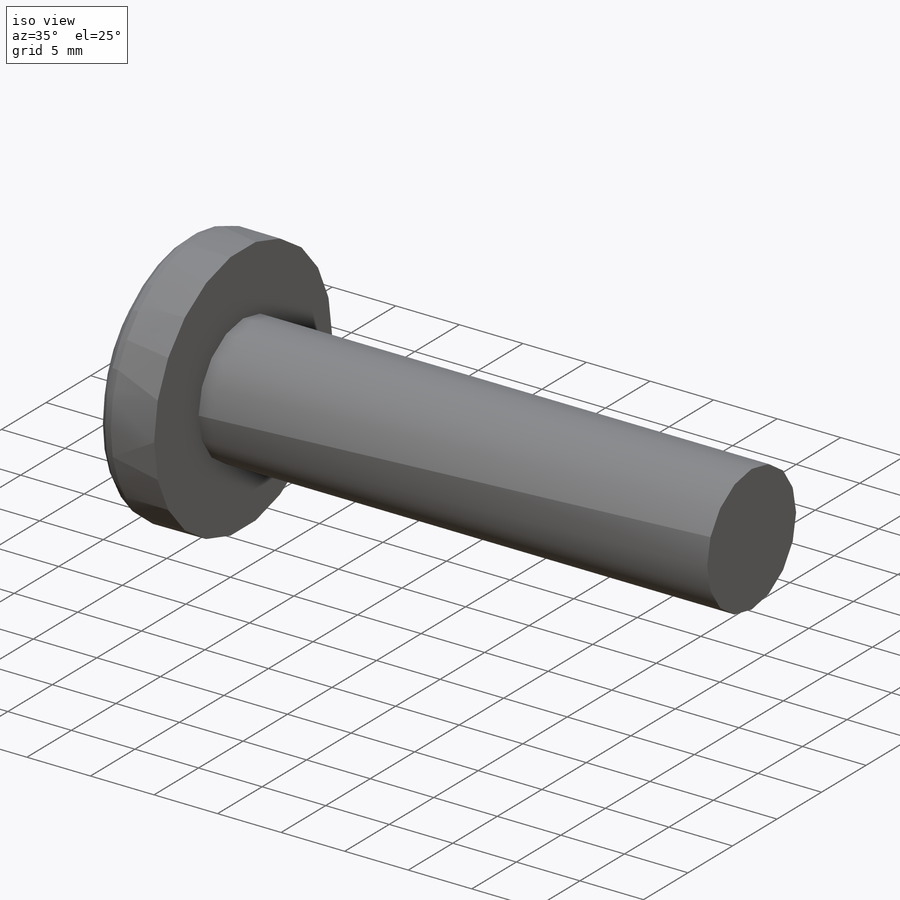
[diagram: iso view]
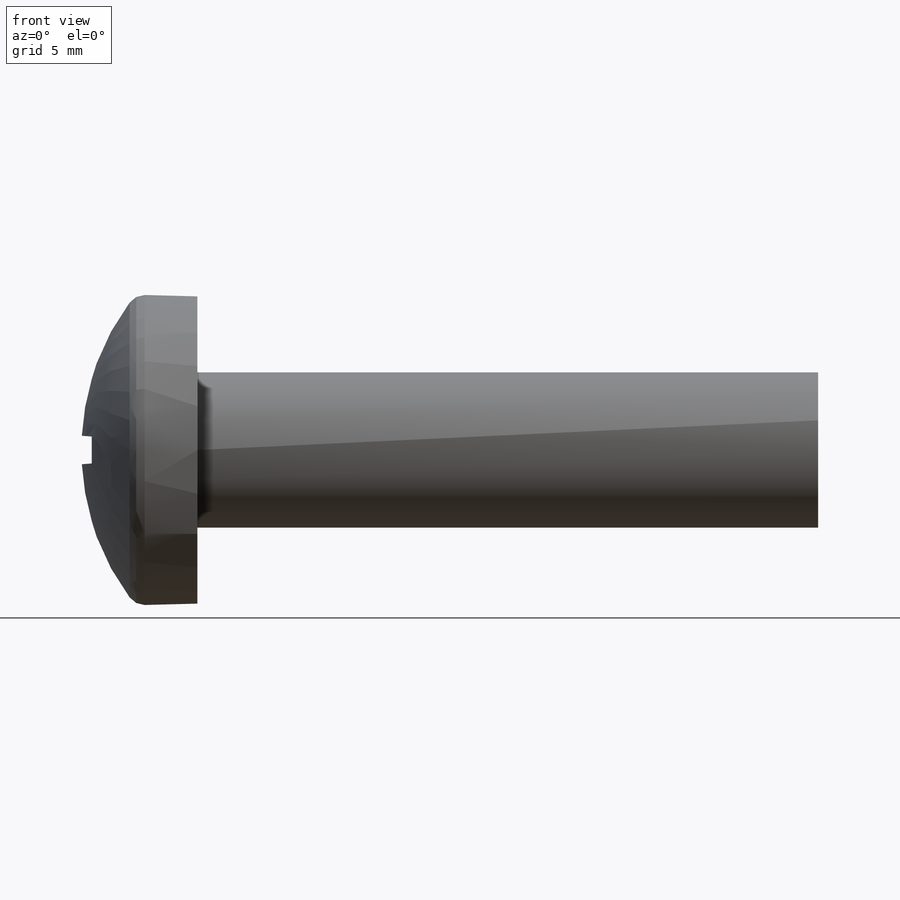
[diagram: front view]
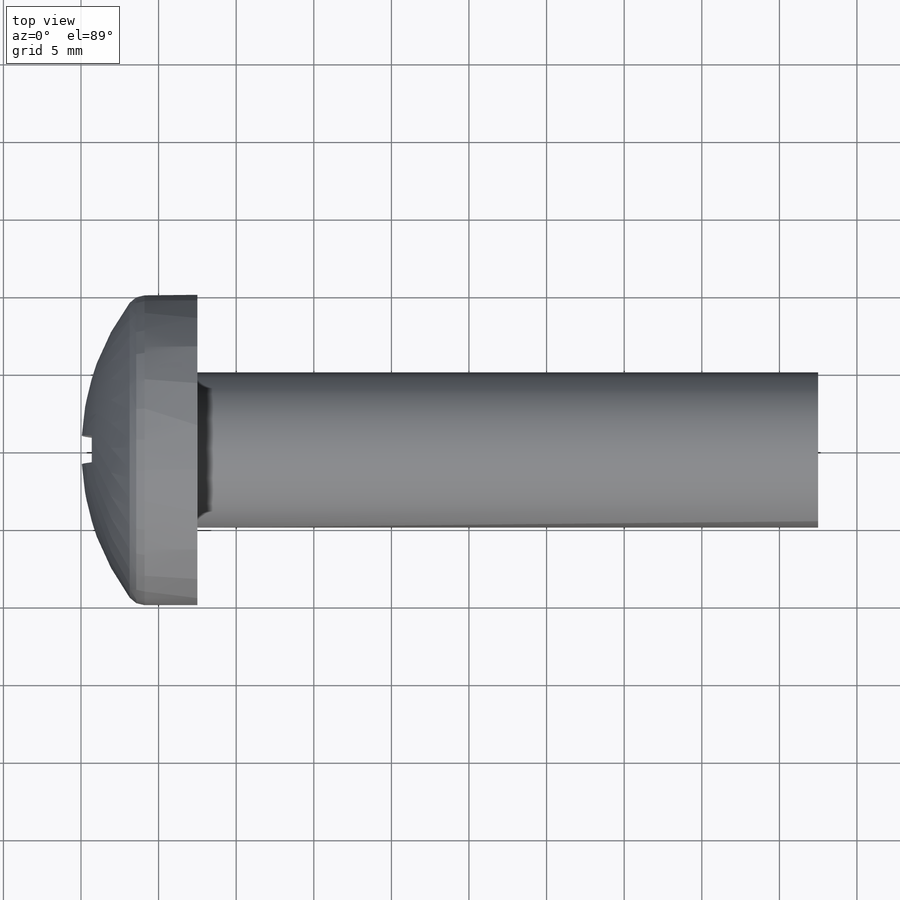
[diagram: top view]
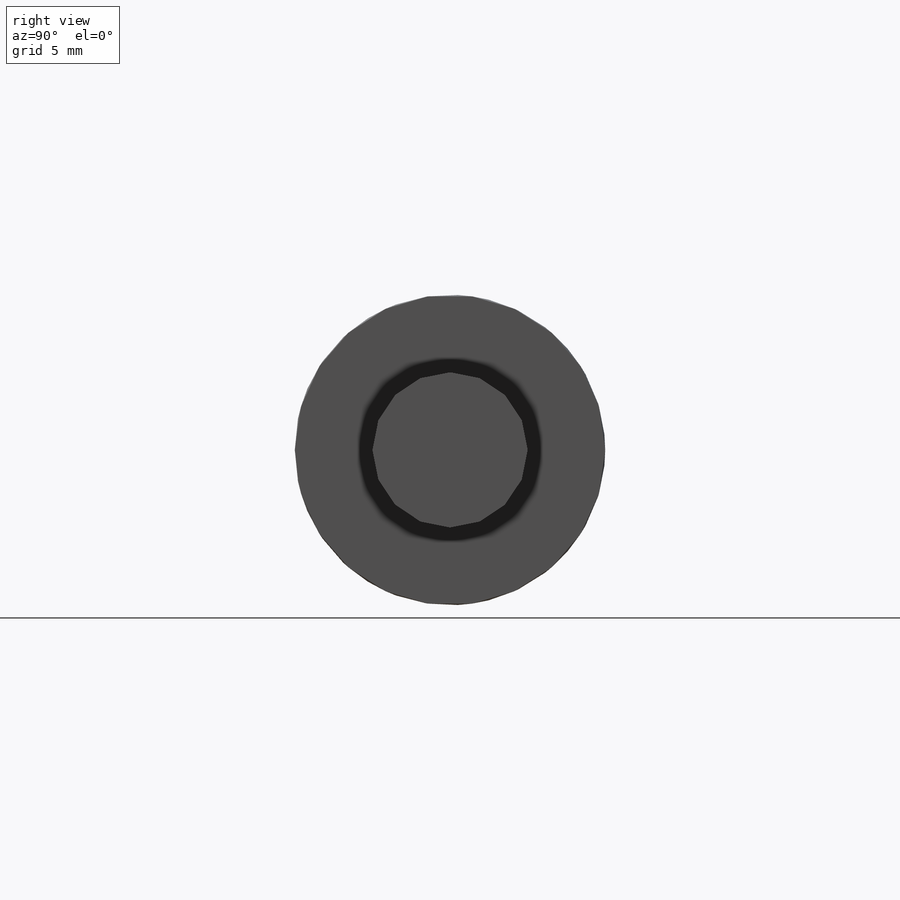
[diagram: right view]
SOLIDWORKS PART (.sldprt)
format: sldprt  version: not decoded by parser v0  size: 748,032 bytes
history: native  units: mm
features: plane x4, sketch x4, material x1, revolve x1, thread x1, pattern_circular x1, cut_revolve x1, pattern_linear x1 (+8 scaffold rows collapsed)
feature tree (22):
  scaffold x8  (default folders/planes/origin — collapsed)
  material  "Material <not specified>"
  plane  "Plane1"
  plane  "Plane2"
  plane  "Plane3"
  sketch  "BodySke"  dims[c1.Head_fillet_rad=3.6322mm c1.Head_crown_rad=3.2mm c2.Head_fillet_rad=0.24mm c2.D1=~7.099516mm c2.Head_ang=85.0deg c2.Oval_ht=2.3876mm c2.Head_ht=6.1976mm c2.Diameter=2.0mm c2.Length=76.2mm c2.Head_dia=20.0152mm c3.Head_dia=15.3924mm c3.Head_ht=8.509mm c3.Length=2.5mm c3.Head_side_ht=6.1722mm c4.Head_ht=5.1562mm c4.Head_dia=18.4912mm c5.Head_ht=1.6mm c5.Head_dia=4.0mm c5.Advance=0.4mm c5.Thread_nom=2.5mm c5.Thread_lim=~37.30625mm]
  revolve  "Base-Revolve"  [1 undecoded]
  thread  "ThreadCosmetic"  Diameter=2.1mm Thread_length=2.1mm Thread_minor=1.548mm Head_dia=4mm  [1 undecoded]
  sketch  "Sketch3"  dims[Cross_dia=1.82mm D1=0.91mm Cross_width=0.48mm D2=0.24mm]
  plane  "Plane4"  Offset=1.19mm Cross_depth=1.19mm
  sketch  "Sketch4"  dims[D1=0.24mm D2=0.24mm D3=0.12mm D4=0.12mm]
  pattern_circular  "CirPattern1"  Count=2 Angle=90deg
  sketch  "ThdSchSke"  dims[c1.Thread_minor=~1.03886mm c1.Diameter=~1.413535mm c1.Start=~0.988134mm c1.D4=~4.446753mm c1.Vee=60.0deg c2.Thread_minor=~1.03886mm c2.Start=~2.540025mm c2.D1=~0.108159mm c2.D2=~0.108159mm c3.D1=~0.216319mm c3.SideAngle=55.0deg c3.D2=~0.216319mm c3.VeeAngle=70.0deg c3.Thread_minor=1.548mm c3.Overcut=2.5mm c3.Diameter=2.0mm c3.D6=~8.326268mm c4.D1=~8.326268mm c5.D1=90.0deg c5.Start=11.1125mm c6.Start=~44.450025mm c7.Start=2.0mm]
  cut_revolve  "ThreadSchematic"  Angle=360deg
  pattern_linear  "ThdSchPat"  Count1=7 Count2=1 Spacing1=0.35mm Spacing2=50mm Num_threads=7 Advance=0.35mm
decode coverage: 8 of 9 modeling features carry decoded parameters
note: ~ marks probable driven/reference dimensions
note: 2 parameter values undecoded
note: suppression state not decoded; provenance and decode notes live in map.json
